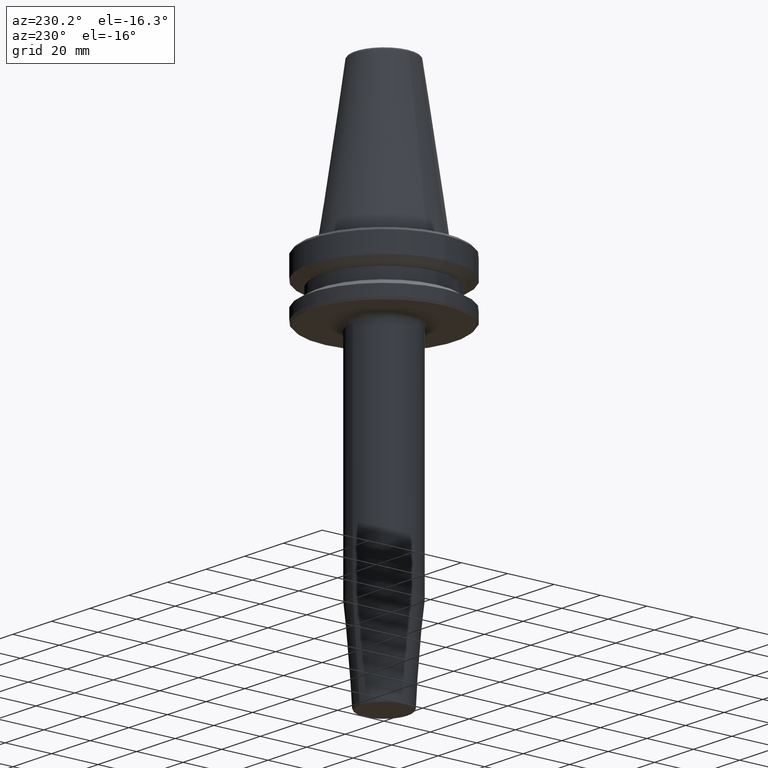
[diagram: clean part render]
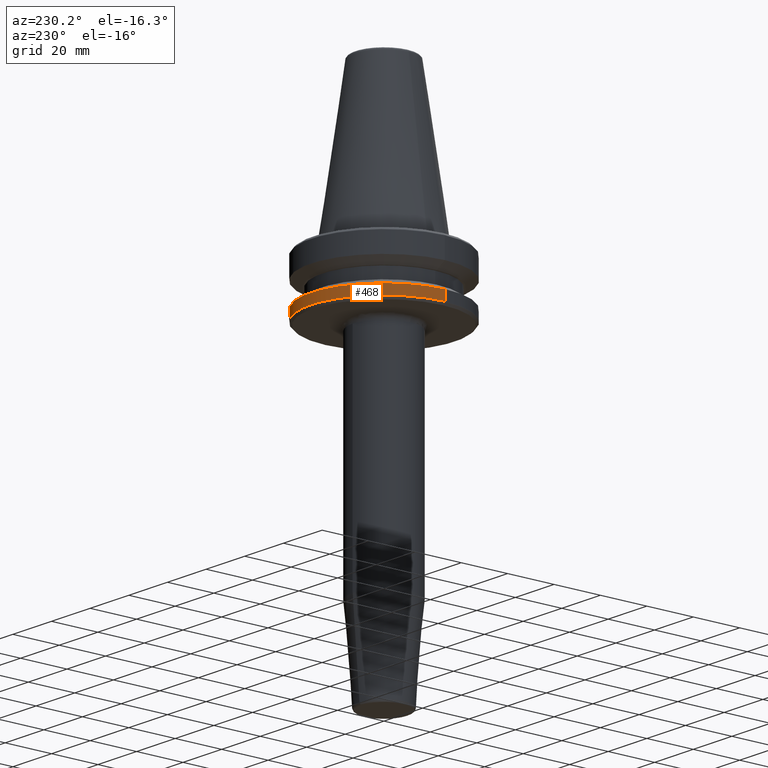
[diagram: same view with one face highlighted and labeled with its STEP entity id]
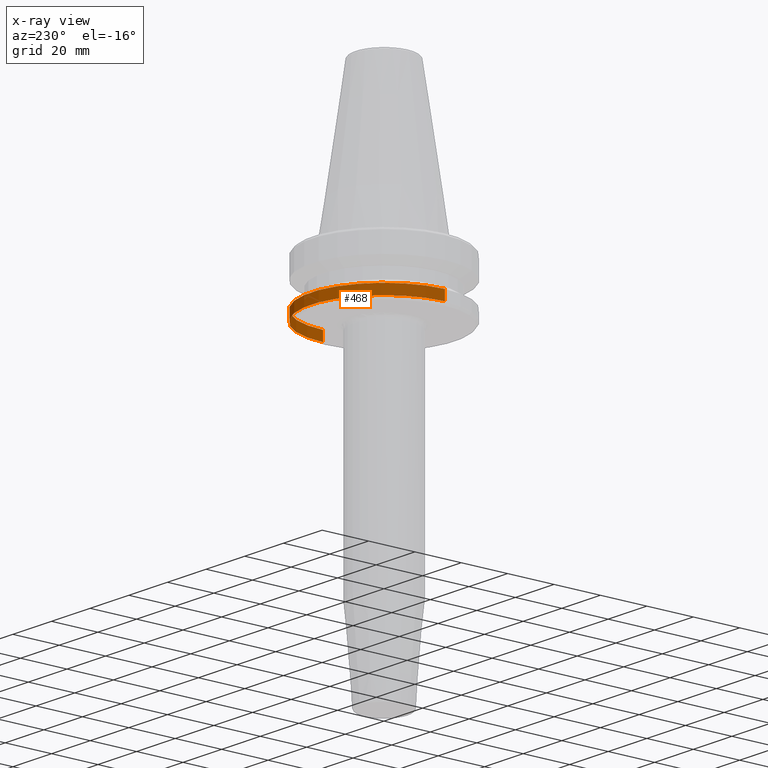
[diagram: x-ray of the same camera — body ghosted, the highlighted face saturated]
A machine part, auxiliary view. The second image highlights one B-rep face of the part: STEP entity #468.
The next image is the same camera in x-ray: the body ghosted, the highlighted face saturated — about 0% of this face is hidden behind the body in this view.
In plain terms, the highlighted cylindrical surface (partial cylindrical patch) has radius 31.5 mm, axis along (-0, -0, 1).
Its self-contained STEP definition (entity closure, byte-faithful):
#142 = VECTOR ( 'NONE', #1103, 1000.000000000000000 ) ;
#183 = CYLINDRICAL_SURFACE ( 'NONE', #736, 31.50000000000000000 ) ;
#206 = EDGE_CURVE ( 'NONE', #363, #447, #461, .T. ) ;
#210 = EDGE_LOOP ( 'NONE', ( #237, #243, #1024, #1056 ) ) ;
#225 = AXIS2_PLACEMENT_3D ( 'NONE', #640, #1086, #573 ) ;
#237 = ORIENTED_EDGE ( 'NONE', *, *, #280, .T. ) ;
#243 = ORIENTED_EDGE ( 'NONE', *, *, #292, .T. ) ;
#280 = EDGE_CURVE ( 'NONE', #291, #345, #626, .T. ) ;
#291 = VERTEX_POINT ( 'NONE', #375 ) ;
#292 = EDGE_CURVE ( 'NONE', #345, #447, #1169, .T. ) ;
#299 = EDGE_CURVE ( 'NONE', #291, #363, #401, .T. ) ;
#345 = VERTEX_POINT ( 'NONE', #1222 ) ;
#363 = VERTEX_POINT ( 'NONE', #1102 ) ;
#375 = CARTESIAN_POINT ( 'NONE',  ( 31.50000000000000000, 0.0000000000000000000, -25.83431457505076900 ) ) ;
#392 = DIRECTION ( 'NONE',  ( -0.0000000000000000000, -0.0000000000000000000, 1.000000000000000000 ) ) ;
#401 = LINE ( 'NONE', #877, #1165 ) ;
#447 = VERTEX_POINT ( 'NONE', #1092 ) ;
#461 = CIRCLE ( 'NONE', #225, 31.50000000000000000 ) ;
#468 = ADVANCED_FACE ( 'NONE', ( #985 ), #183, .T. ) ;
#573 = DIRECTION ( 'NONE',  ( 1.000000000000000000, 0.0000000000000000000, 0.0000000000000000000 ) ) ;
#589 = DIRECTION ( 'NONE',  ( 1.000000000000000000, 0.0000000000000000000, 0.0000000000000000000 ) ) ;
#626 = CIRCLE ( 'NONE', #682, 31.50000000000000000 ) ;
#640 = CARTESIAN_POINT ( 'NONE',  ( 0.0000000000000000000, 0.0000000000000000000, -21.60014200631675500 ) ) ;
#682 = AXIS2_PLACEMENT_3D ( 'NONE', #803, #888, #687 ) ;
#684 = CARTESIAN_POINT ( 'NONE',  ( 0.0000000000000000000, 0.0000000000000000000, 69.75694866325665100 ) ) ;
#687 = DIRECTION ( 'NONE',  ( 1.000000000000000000, 0.0000000000000000000, 0.0000000000000000000 ) ) ;
#736 = AXIS2_PLACEMENT_3D ( 'NONE', #684, #392, #589 ) ;
#803 = CARTESIAN_POINT ( 'NONE',  ( 0.0000000000000000000, 0.0000000000000000000, -25.83431457505076900 ) ) ;
#877 = CARTESIAN_POINT ( 'NONE',  ( 31.50000000000000000, 0.0000000000000000000, 69.75694866325665100 ) ) ;
#888 = DIRECTION ( 'NONE',  ( -0.0000000000000000000, -0.0000000000000000000, 1.000000000000000000 ) ) ;
#932 = CARTESIAN_POINT ( 'NONE',  ( -31.50000000000000000, 3.857637417314162700E-015, 69.75694866325665100 ) ) ;
#985 = FACE_OUTER_BOUND ( 'NONE', #210, .T. ) ;
#1024 = ORIENTED_EDGE ( 'NONE', *, *, #206, .F. ) ;
#1056 = ORIENTED_EDGE ( 'NONE', *, *, #299, .F. ) ;
#1086 = DIRECTION ( 'NONE',  ( -0.0000000000000000000, -0.0000000000000000000, 1.000000000000000000 ) ) ;
#1092 = CARTESIAN_POINT ( 'NONE',  ( -31.50000000000000000, 3.857637417314162700E-015, -21.60014200631675500 ) ) ;
#1102 = CARTESIAN_POINT ( 'NONE',  ( 31.50000000000000000, 0.0000000000000000000, -21.60014200631675500 ) ) ;
#1103 = DIRECTION ( 'NONE',  ( -0.0000000000000000000, -0.0000000000000000000, 1.000000000000000000 ) ) ;
#1149 = DIRECTION ( 'NONE',  ( -0.0000000000000000000, -0.0000000000000000000, 1.000000000000000000 ) ) ;
#1165 = VECTOR ( 'NONE', #1149, 1000.000000000000000 ) ;
#1169 = LINE ( 'NONE', #932, #142 ) ;
#1222 = CARTESIAN_POINT ( 'NONE',  ( -31.50000000000000000, 3.857637417314162700E-015, -25.83431457505076900 ) ) ;